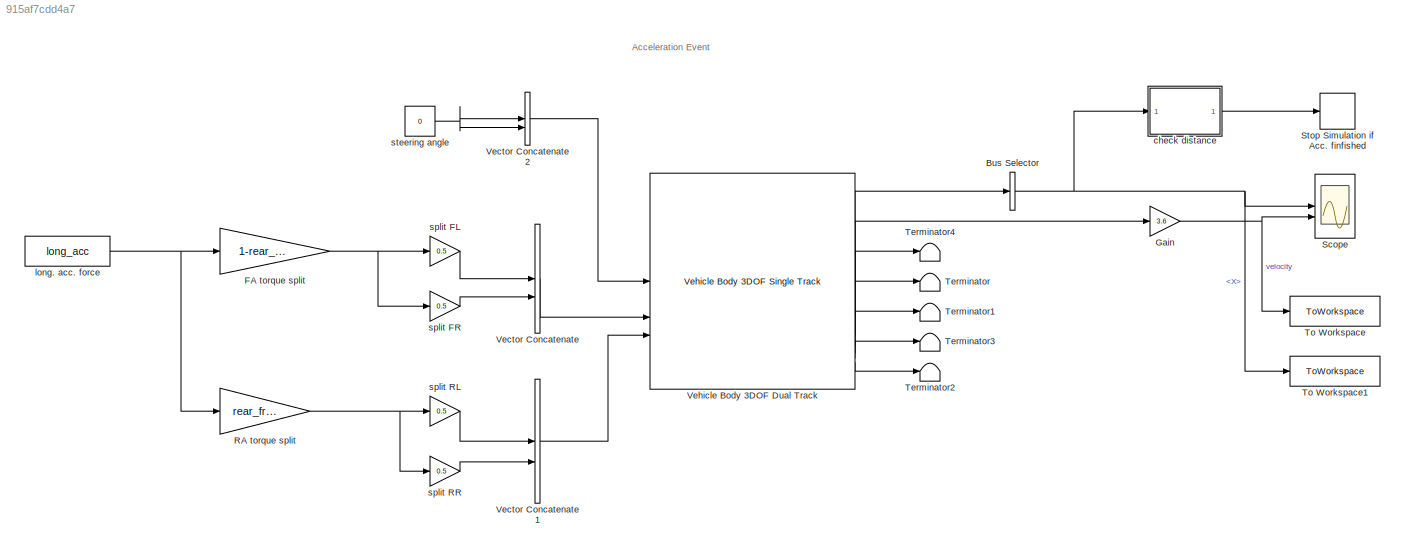
MODEL slx_915af7cdd4a7
KIND model
CONFIG AbsTol = auto
CONFIG EnableMultiTasking = off
CONFIG FixedStep = 0.001
CONFIG MaxStep = auto
CONFIG MinStep = auto
CONFIG RelTol = 1e-3
CONFIG SampleTimeConstraint = Unconstrained
CONFIG SolverName = ode1
CONFIG StartTime = 0.0
CONFIG StopTime = 6
BLOCK [BusSelector] Bus Selector
  OutputSignals = InertFrm.Cg.Disp.X
BLOCK [Gain] FA torque split
  Gain = 1-rear_front_split
BLOCK [Gain] Gain
  Gain = 3.6
BLOCK [Gain] RA torque split
  Gain = rear_front_split
BLOCK [Scope] Scope
  Floating = off
  NumInputPorts = 2
  ScopeSpecificationString = Simulink.scopes.TimeScopeBlockCfg('CurrentConfiguration', extmgr.ConfigurationSet(extmgr.Configuration('Core','General UI',true),extmgr.Configuration('Core','Source UI',true),extmgr.Configuration('Sources','WiredSimulink',true),extmgr.Configuration('Visuals','Time Domain',true,'SerializedDisplays',{struct('MinYLimReal','-9.37522','MaxYLimReal','84.37694','YLabelReal','','MinYLimMag','0.00000','Max...<+1885ch>
BLOCK [Stop] Stop Simulation if Acc. finfished
BLOCK [Terminator] Terminator
BLOCK [Terminator] Terminator1
BLOCK [Terminator] Terminator2
BLOCK [Terminator] Terminator3
BLOCK [Terminator] Terminator4
BLOCK [ToWorkspace] To Workspace
  FixptAsFi = on
  MaxDataPoints = inf
  SampleTime = -1
  VariableName = vel
BLOCK [ToWorkspace] To Workspace1
  FixptAsFi = on
  MaxDataPoints = inf
  SampleTime = -1
  VariableName = dist
BLOCK [Concatenate] Vector Concatenate
BLOCK [Concatenate] Vector Concatenate1
BLOCK [Concatenate] Vector Concatenate2
BLOCK [Reference] Vehicle Body 3DOF Dual Track  REF=autolibshared/Vehicle Body 3DOF Single Track
  LibrarySourceBlock = vehdynlibeom/Vehicle Body 3DOF Dual Track
  SourceBlock = autolibshared/Vehicle Body 3DOF Single Track
  SourceType = Vehicle Body 3DOF Lateral
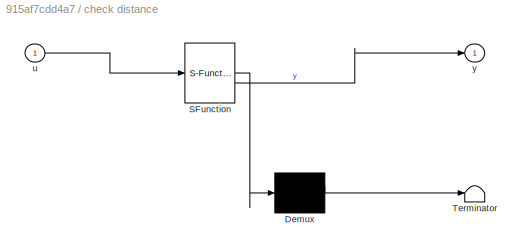
BLOCK [SubSystem] check distance
  ErrorFcn = Stateflow.Translate.translate
  PermitHierarchicalResolution = ExplicitOnly
  SFBlockType = MATLAB Function
  TreatAsAtomicUnit = on
BLOCK [Demux] check distance/ Demux 
  Outputs = 1
BLOCK [S-Function] check distance/ SFunction 
  EnableBusSupport = on
  FunctionName = sf_sfun
  PortCounts = [1 2]
  SFcnIsStateOwnerBlock = off
  SFunctionDeploymentMode = off
  Tag = Stateflow S-Function 2
BLOCK [Terminator] check distance/ Terminator 
BLOCK [Inport] check distance/u
BLOCK [Outport] check distance/y
BLOCK [Constant] long. acc. force
  Value = long_acc
BLOCK [Gain] split FL
  Gain = 0.5
BLOCK [Gain] split FR
  Gain = 0.5
BLOCK [Gain] split RL
  Gain = 0.5
BLOCK [Gain] split RR
  Gain = 0.5
BLOCK [Constant] steering angle
  Value = 0
ANNOTATION (root): Acceleration Event
NET Bus Selector:1 -> Scope:1, To Workspace1:1, check distance:1
NET FA torque split:1 -> split FL:1, split FR:1
NET Gain:1 -> Scope:2, To Workspace:1
NET RA torque split:1 -> split RL:1, split RR:1
LINE Vector Concatenate1:1 -> Vehicle Body 3DOF Dual Track:3
LINE Vector Concatenate2:1 -> Vehicle Body 3DOF Dual Track:1
LINE Vector Concatenate:1 -> Vehicle Body 3DOF Dual Track:2
LINE Vehicle Body 3DOF Dual Track:1 -> Bus Selector:1
LINE Vehicle Body 3DOF Dual Track:2 -> Gain:1
LINE Vehicle Body 3DOF Dual Track:3 -> Terminator4:1
LINE Vehicle Body 3DOF Dual Track:4 -> Terminator:1
LINE Vehicle Body 3DOF Dual Track:5 -> Terminator1:1
LINE Vehicle Body 3DOF Dual Track:6 -> Terminator3:1
LINE Vehicle Body 3DOF Dual Track:7 -> Terminator2:1
LINE check distance:1 -> Stop Simulation if Acc. finfished:1
NET long. acc. force:1 -> FA torque split:1, RA torque split:1
LINE split FL:1 -> Vector Concatenate:1
LINE split FR:1 -> Vector Concatenate:2
LINE split RL:1 -> Vector Concatenate1:1
LINE split RR:1 -> Vector Concatenate1:2
NET steering angle:1 -> Vector Concatenate2:1, Vector Concatenate2:2
note: NET lines group one-source signal fan-out (src -> all destinations, sorted); 1:1 wires keep LINE
CHART check distance states=1 transitions=1
  STATE_LABEL 'eML_blk_kernel()'
  STATE_LABEL 'SCRIPT:\nfunction y = fcn(u)\n    if u >= 75\n        y = 1;\n    else\n        y = 0;\n    end\n'
CHART  states=0 transitions=0
